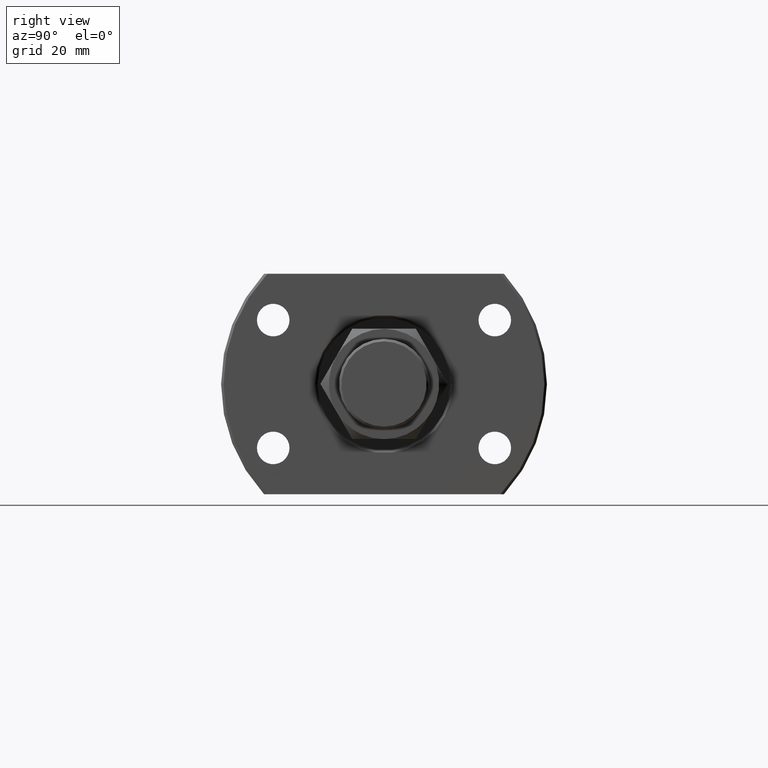
[diagram: clean part render]
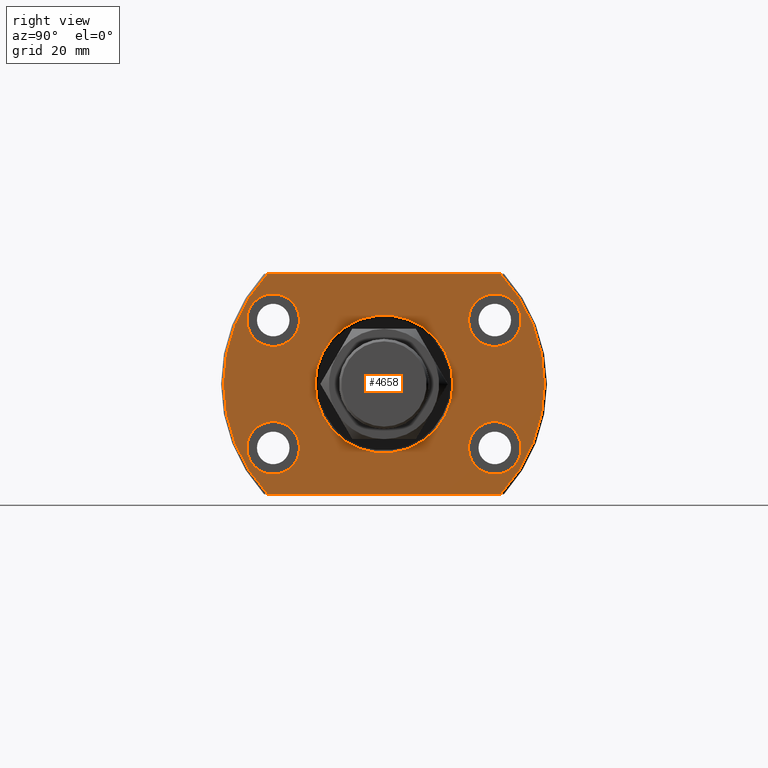
[diagram: same view with one face highlighted and labeled with its STEP entity id]
A machine part, right view. The second image highlights one B-rep face of the part: STEP entity #4658.
In plain terms, the highlighted planar face has unit normal (-1, -0, 0).
Its self-contained STEP definition (entity closure, byte-faithful):
#57 = FACE_OUTER_BOUND ( 'NONE', #1691, .T. ) ;
#75 = EDGE_CURVE ( 'NONE', #391, #3721, #1014, .T. ) ;
#166 = EDGE_LOOP ( 'NONE', ( #2569, #4037 ) ) ;
#168 = ORIENTED_EDGE ( 'NONE', *, *, #1658, .F. ) ;
#290 = VERTEX_POINT ( 'NONE', #1192 ) ;
#364 = CARTESIAN_POINT ( 'NONE',  ( 31.50000000000000000, 13.74999999999826805, 0.000000000000000000 ) ) ;
#391 = VERTEX_POINT ( 'NONE', #3033 ) ;
#397 = CARTESIAN_POINT ( 'NONE',  ( 31.50000000000000000, 23.92174742781217489, 22.00000000000000355 ) ) ;
#473 = FACE_BOUND ( 'NONE', #4360, .T. ) ;
#497 = VERTEX_POINT ( 'NONE', #4431 ) ;
#503 = AXIS2_PLACEMENT_3D ( 'NONE', #2242, #4044, #4532 ) ;
#509 = DIRECTION ( 'NONE',  ( 1.000000000000000000, 2.721437331438560389E-17, -0.000000000000000000 ) ) ;
#539 = ORIENTED_EDGE ( 'NONE', *, *, #2577, .T. ) ;
#653 = ORIENTED_EDGE ( 'NONE', *, *, #4829, .F. ) ;
#735 = CARTESIAN_POINT ( 'NONE',  ( 31.50000000000000000, -32.00000000000000000, -22.00000000000000355 ) ) ;
#750 = EDGE_CURVE ( 'NONE', #4243, #497, #1379, .T. ) ;
#805 = CARTESIAN_POINT ( 'NONE',  ( 31.50000000000063949, 22.09999999999909193, -12.75000000000000178 ) ) ;
#818 = DIRECTION ( 'NONE',  ( -0.000000000000000000, 1.000000000000000000, 0.000000000000000000 ) ) ;
#830 = DIRECTION ( 'NONE',  ( 2.907726969256361977E-14, 1.000000000000000000, 0.000000000000000000 ) ) ;
#862 = ORIENTED_EDGE ( 'NONE', *, *, #4257, .T. ) ;
#918 = FACE_BOUND ( 'NONE', #166, .T. ) ;
#965 = DIRECTION ( 'NONE',  ( 2.907726969256361977E-14, 1.000000000000000000, 0.000000000000000000 ) ) ;
#974 = EDGE_CURVE ( 'NONE', #1293, #4731, #1633, .T. ) ;
#1012 = CIRCLE ( 'NONE', #2830, 5.250000000000000888 ) ;
#1014 = LINE ( 'NONE', #735, #2339 ) ;
#1028 = EDGE_LOOP ( 'NONE', ( #2071, #862 ) ) ;
#1042 = DIRECTION ( 'NONE',  ( 0.000000000000000000, -1.000000000000000000, 0.000000000000000000 ) ) ;
#1095 = VERTEX_POINT ( 'NONE', #3101 ) ;
#1158 = AXIS2_PLACEMENT_3D ( 'NONE', #4790, #2201, #1042 ) ;
#1192 = CARTESIAN_POINT ( 'NONE',  ( 31.50000000000000000, -23.23790007724449680, 22.00000000000000355 ) ) ;
#1221 = FACE_BOUND ( 'NONE', #4337, .T. ) ;
#1234 = AXIS2_PLACEMENT_3D ( 'NONE', #4153, #3120, #3832 ) ;
#1293 = VERTEX_POINT ( 'NONE', #1654 ) ;
#1357 = ORIENTED_EDGE ( 'NONE', *, *, #75, .T. ) ;
#1379 = CIRCLE ( 'NONE', #3581, 5.250000000000000888 ) ;
#1383 = DIRECTION ( 'NONE',  ( -1.000000000000000000, -2.721437331438560389E-17, 0.000000000000000000 ) ) ;
#1423 = CIRCLE ( 'NONE', #2047, 5.250000000000000888 ) ;
#1435 = EDGE_CURVE ( 'NONE', #3871, #391, #2649, .T. ) ;
#1443 = DIRECTION ( 'NONE',  ( 2.907726969256361977E-14, 1.000000000000000000, 0.000000000000000000 ) ) ;
#1491 = VERTEX_POINT ( 'NONE', #2867 ) ;
#1503 = AXIS2_PLACEMENT_3D ( 'NONE', #2544, #4068, #1443 ) ;
#1566 = AXIS2_PLACEMENT_3D ( 'NONE', #3287, #3314, #4842 ) ;
#1583 = CIRCLE ( 'NONE', #1894, 32.00000000000000000 ) ;
#1626 = EDGE_CURVE ( 'NONE', #4181, #1689, #4147, .T. ) ;
#1633 = CIRCLE ( 'NONE', #2729, 5.250000000000000888 ) ;
#1654 = CARTESIAN_POINT ( 'NONE',  ( 31.49999999999920774, -27.35000000000091092, 12.74999999999999822 ) ) ;
#1658 = EDGE_CURVE ( 'NONE', #3626, #4679, #3356, .T. ) ;
#1689 = VERTEX_POINT ( 'NONE', #4519 ) ;
#1691 = EDGE_LOOP ( 'NONE', ( #3840, #3566, #2561, #1357, #539 ) ) ;
#1743 = CARTESIAN_POINT ( 'NONE',  ( 31.49999999999951328, -16.85000000000091092, 12.74999999999999822 ) ) ;
#1760 = CARTESIAN_POINT ( 'NONE',  ( 31.50000000000000000, 8.572527594031465301E-16, 0.000000000000000000 ) ) ;
#1883 = EDGE_CURVE ( 'NONE', #4237, #1095, #2884, .T. ) ;
#1894 = AXIS2_PLACEMENT_3D ( 'NONE', #1760, #509, #3215 ) ;
#1903 = DIRECTION ( 'NONE',  ( 1.000000000000000000, -2.886466111666351885E-14, 0.000000000000000000 ) ) ;
#1981 = EDGE_CURVE ( 'NONE', #290, #1491, #2328, .T. ) ;
#1988 = PLANE ( 'NONE',  #2914 ) ;
#2014 = ORIENTED_EDGE ( 'NONE', *, *, #974, .F. ) ;
#2018 = AXIS2_PLACEMENT_3D ( 'NONE', #805, #2334, #4206 ) ;
#2047 = AXIS2_PLACEMENT_3D ( 'NONE', #4040, #3258, #965 ) ;
#2063 = CARTESIAN_POINT ( 'NONE',  ( 31.50000000000000000, 23.23790007724450035, -22.00000000000000355 ) ) ;
#2071 = ORIENTED_EDGE ( 'NONE', *, *, #1883, .T. ) ;
#2187 = ORIENTED_EDGE ( 'NONE', *, *, #2785, .F. ) ;
#2201 = DIRECTION ( 'NONE',  ( -1.000000000000000000, -2.721437331438560389E-17, 0.000000000000000000 ) ) ;
#2242 = CARTESIAN_POINT ( 'NONE',  ( 31.50000000000000000, 8.572527594031465301E-16, 0.000000000000000000 ) ) ;
#2328 = LINE ( 'NONE', #397, #3284 ) ;
#2329 = CARTESIAN_POINT ( 'NONE',  ( 31.50000000000063949, 22.09999999999909193, -12.75000000000000178 ) ) ;
#2332 = DIRECTION ( 'NONE',  ( -1.000000000000000000, -2.721437331438560389E-17, 0.000000000000000000 ) ) ;
#2334 = DIRECTION ( 'NONE',  ( 1.000000000000000000, -2.887798767815668620E-14, -6.310887241768094443E-30 ) ) ;
#2339 = VECTOR ( 'NONE', #4463, 1000.000000000000000 ) ;
#2406 = CARTESIAN_POINT ( 'NONE',  ( 31.49999999999920774, -27.35000000000091092, -12.75000000000000178 ) ) ;
#2426 = FACE_BOUND ( 'NONE', #3111, .T. ) ;
#2544 = CARTESIAN_POINT ( 'NONE',  ( 31.49999999999936051, -22.10000000000091092, 12.74999999999999822 ) ) ;
#2561 = ORIENTED_EDGE ( 'NONE', *, *, #1435, .T. ) ;
#2569 = ORIENTED_EDGE ( 'NONE', *, *, #750, .F. ) ;
#2577 = EDGE_CURVE ( 'NONE', #3721, #1491, #4386, .T. ) ;
#2579 = DIRECTION ( 'NONE',  ( 1.000000000000000000, -2.887798767815668620E-14, -6.310887241768094443E-30 ) ) ;
#2648 = DIRECTION ( 'NONE',  ( 2.907726969256361977E-14, 1.000000000000000000, 0.000000000000000000 ) ) ;
#2649 = CIRCLE ( 'NONE', #503, 32.00000000000000000 ) ;
#2663 = CARTESIAN_POINT ( 'NONE',  ( 31.50000000000063949, 22.09999999999909193, 12.74999999999999822 ) ) ;
#2706 = CARTESIAN_POINT ( 'NONE',  ( 31.50000000000000000, -32.00000000000000000, 0.000000000000000000 ) ) ;
#2729 = AXIS2_PLACEMENT_3D ( 'NONE', #4427, #2579, #4078 ) ;
#2785 = EDGE_CURVE ( 'NONE', #1689, #4181, #3521, .T. ) ;
#2830 = AXIS2_PLACEMENT_3D ( 'NONE', #2925, #2945, #2970 ) ;
#2867 = CARTESIAN_POINT ( 'NONE',  ( 31.50000000000000000, 23.23790007724450035, 22.00000000000000355 ) ) ;
#2884 = CIRCLE ( 'NONE', #1158, 13.74999999999917577 ) ;
#2914 = AXIS2_PLACEMENT_3D ( 'NONE', #2706, #2332, #3827 ) ;
#2925 = CARTESIAN_POINT ( 'NONE',  ( 31.49999999999936051, -22.10000000000091092, -12.75000000000000178 ) ) ;
#2937 = DIRECTION ( 'NONE',  ( 0.000000000000000000, -1.000000000000000000, 0.000000000000000000 ) ) ;
#2945 = DIRECTION ( 'NONE',  ( 1.000000000000000000, -2.887798767815668620E-14, -6.310887241768094443E-30 ) ) ;
#2970 = DIRECTION ( 'NONE',  ( 2.907726969256361977E-14, 1.000000000000000000, 0.000000000000000000 ) ) ;
#3033 = CARTESIAN_POINT ( 'NONE',  ( 31.50000000000000000, -23.23790007724450035, -22.00000000000000355 ) ) ;
#3072 = DIRECTION ( 'NONE',  ( 1.000000000000000000, -2.887798767815668620E-14, -6.310887241768094443E-30 ) ) ;
#3101 = CARTESIAN_POINT ( 'NONE',  ( 31.50000000000000000, -13.75000000000088107, 1.683889348827607301E-15 ) ) ;
#3111 = EDGE_LOOP ( 'NONE', ( #653, #2014 ) ) ;
#3120 = DIRECTION ( 'NONE',  ( 1.000000000000000000, -2.887798767815668620E-14, -6.310887241768094443E-30 ) ) ;
#3188 = CARTESIAN_POINT ( 'NONE',  ( 31.50000000000079226, 27.34999999999909548, -12.75000000000000178 ) ) ;
#3215 = DIRECTION ( 'NONE',  ( 0.000000000000000000, 1.000000000000000000, 0.000000000000000000 ) ) ;
#3258 = DIRECTION ( 'NONE',  ( 1.000000000000000000, -2.886466111666351885E-14, 0.000000000000000000 ) ) ;
#3284 = VECTOR ( 'NONE', #818, 1000.000000000000000 ) ;
#3287 = CARTESIAN_POINT ( 'NONE',  ( 31.50000000000000000, 8.572527594031465301E-16, 0.000000000000000000 ) ) ;
#3308 = CARTESIAN_POINT ( 'NONE',  ( 31.50000000000079226, 27.34999999999909548, 12.74999999999999822 ) ) ;
#3314 = DIRECTION ( 'NONE',  ( 1.000000000000000000, 2.721437331438560389E-17, -0.000000000000000000 ) ) ;
#3356 = CIRCLE ( 'NONE', #1234, 5.250000000000000888 ) ;
#3360 = CARTESIAN_POINT ( 'NONE',  ( 31.50000000000000000, -32.00000000000000000, 0.000000000000000000 ) ) ;
#3484 = CARTESIAN_POINT ( 'NONE',  ( 31.49999999999951328, -16.85000000000091092, -12.75000000000000178 ) ) ;
#3521 = CIRCLE ( 'NONE', #3605, 5.250000000000000888 ) ;
#3536 = AXIS2_PLACEMENT_3D ( 'NONE', #4813, #1383, #2937 ) ;
#3566 = ORIENTED_EDGE ( 'NONE', *, *, #4209, .T. ) ;
#3581 = AXIS2_PLACEMENT_3D ( 'NONE', #2663, #1903, #830 ) ;
#3605 = AXIS2_PLACEMENT_3D ( 'NONE', #2329, #3072, #2648 ) ;
#3614 = CIRCLE ( 'NONE', #3536, 13.74999999999917577 ) ;
#3626 = VERTEX_POINT ( 'NONE', #2406 ) ;
#3721 = VERTEX_POINT ( 'NONE', #2063 ) ;
#3827 = DIRECTION ( 'NONE',  ( 2.721437331438560389E-17, -1.000000000000000000, 0.000000000000000000 ) ) ;
#3832 = DIRECTION ( 'NONE',  ( 2.907726969256361977E-14, 1.000000000000000000, 0.000000000000000000 ) ) ;
#3840 = ORIENTED_EDGE ( 'NONE', *, *, #1981, .F. ) ;
#3854 = CIRCLE ( 'NONE', #1503, 5.250000000000000888 ) ;
#3871 = VERTEX_POINT ( 'NONE', #3360 ) ;
#3916 = EDGE_CURVE ( 'NONE', #4679, #3626, #1012, .T. ) ;
#3992 = ORIENTED_EDGE ( 'NONE', *, *, #1626, .F. ) ;
#4037 = ORIENTED_EDGE ( 'NONE', *, *, #4713, .F. ) ;
#4040 = CARTESIAN_POINT ( 'NONE',  ( 31.50000000000063949, 22.09999999999909193, 12.74999999999999822 ) ) ;
#4044 = DIRECTION ( 'NONE',  ( 1.000000000000000000, 2.721437331438560389E-17, -0.000000000000000000 ) ) ;
#4068 = DIRECTION ( 'NONE',  ( 1.000000000000000000, -2.887798767815668620E-14, -6.310887241768094443E-30 ) ) ;
#4078 = DIRECTION ( 'NONE',  ( 2.907726969256361977E-14, 1.000000000000000000, 0.000000000000000000 ) ) ;
#4147 = CIRCLE ( 'NONE', #2018, 5.250000000000000888 ) ;
#4153 = CARTESIAN_POINT ( 'NONE',  ( 31.49999999999936051, -22.10000000000091092, -12.75000000000000178 ) ) ;
#4181 = VERTEX_POINT ( 'NONE', #3188 ) ;
#4206 = DIRECTION ( 'NONE',  ( 2.907726969256361977E-14, 1.000000000000000000, 0.000000000000000000 ) ) ;
#4209 = EDGE_CURVE ( 'NONE', #290, #3871, #1583, .T. ) ;
#4217 = ORIENTED_EDGE ( 'NONE', *, *, #3916, .F. ) ;
#4237 = VERTEX_POINT ( 'NONE', #364 ) ;
#4243 = VERTEX_POINT ( 'NONE', #3308 ) ;
#4257 = EDGE_CURVE ( 'NONE', #1095, #4237, #3614, .T. ) ;
#4295 = FACE_BOUND ( 'NONE', #1028, .T. ) ;
#4337 = EDGE_LOOP ( 'NONE', ( #4217, #168 ) ) ;
#4360 = EDGE_LOOP ( 'NONE', ( #3992, #2187 ) ) ;
#4386 = CIRCLE ( 'NONE', #1566, 32.00000000000000000 ) ;
#4427 = CARTESIAN_POINT ( 'NONE',  ( 31.49999999999936051, -22.10000000000091092, 12.74999999999999822 ) ) ;
#4431 = CARTESIAN_POINT ( 'NONE',  ( 31.50000000000048672, 16.84999999999909193, 12.74999999999999822 ) ) ;
#4463 = DIRECTION ( 'NONE',  ( -2.721437331438560389E-17, 1.000000000000000000, -0.000000000000000000 ) ) ;
#4519 = CARTESIAN_POINT ( 'NONE',  ( 31.50000000000048672, 16.84999999999909193, -12.75000000000000178 ) ) ;
#4532 = DIRECTION ( 'NONE',  ( 0.000000000000000000, 1.000000000000000000, 0.000000000000000000 ) ) ;
#4658 = ADVANCED_FACE ( 'NONE', ( #4295, #918, #2426, #1221, #473, #57 ), #1988, .F. ) ;
#4679 = VERTEX_POINT ( 'NONE', #3484 ) ;
#4713 = EDGE_CURVE ( 'NONE', #497, #4243, #1423, .T. ) ;
#4731 = VERTEX_POINT ( 'NONE', #1743 ) ;
#4790 = CARTESIAN_POINT ( 'NONE',  ( 31.50000000000000000, -9.092368251749008943E-13, 0.000000000000000000 ) ) ;
#4813 = CARTESIAN_POINT ( 'NONE',  ( 31.50000000000000000, -9.092368251749008943E-13, 0.000000000000000000 ) ) ;
#4829 = EDGE_CURVE ( 'NONE', #4731, #1293, #3854, .T. ) ;
#4842 = DIRECTION ( 'NONE',  ( 0.000000000000000000, 1.000000000000000000, 0.000000000000000000 ) ) ;